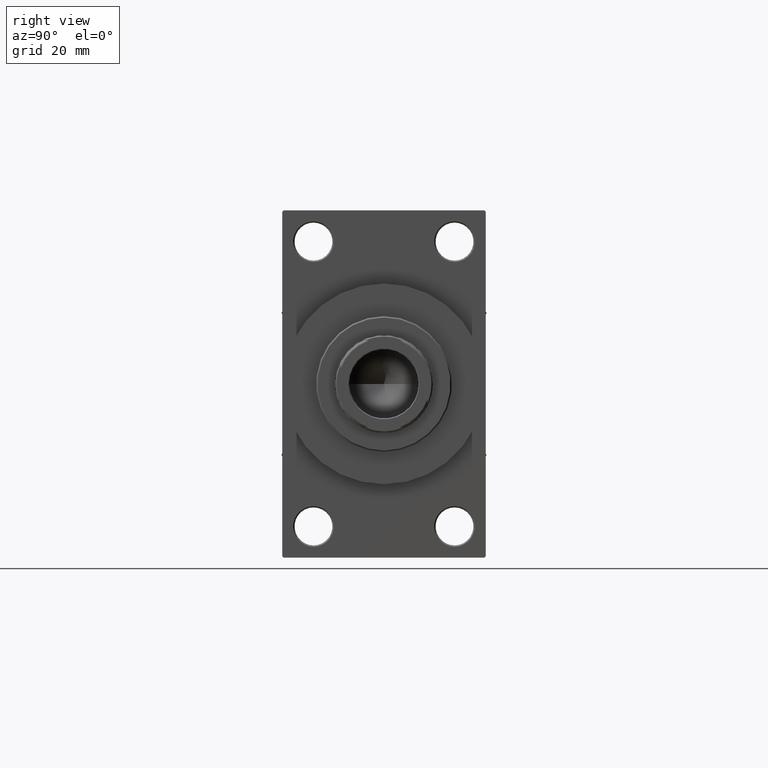
[diagram: clean part render]
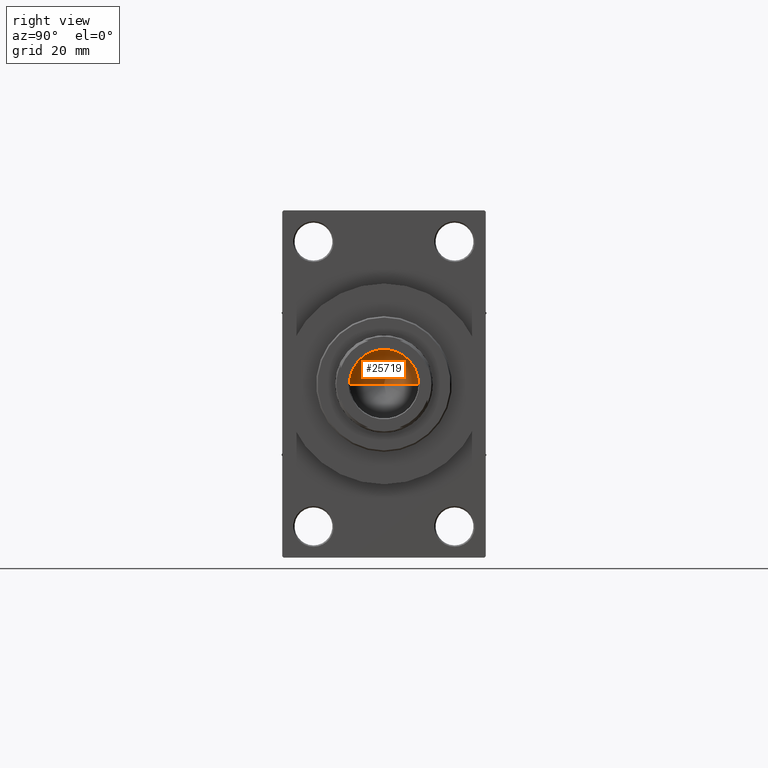
[diagram: same view with one face highlighted and labeled with its STEP entity id]
A machine part, right view. The second image highlights one B-rep face of the part: STEP entity #25719.
In plain terms, the highlighted conical surface has half-angle 59 deg.
Its self-contained STEP definition (entity closure, byte-faithful):
#2316 = EDGE_CURVE ( 'NONE', #34149, #8483, #20122, .T. ) ;
#3617 = AXIS2_PLACEMENT_3D ( 'NONE', #13677, #28246, #13438 ) ;
#7431 = EDGE_CURVE ( 'NONE', #34149, #20442, #42117, .T. ) ;
#8420 = DIRECTION ( 'NONE',  ( 0.8571673007021122226, 0.000000000000000000, 0.5150380749100542666 ) ) ;
#8483 = VERTEX_POINT ( 'NONE', #12857 ) ;
#11724 = AXIS2_PLACEMENT_3D ( 'NONE', #33938, #27247, #16267 ) ;
#12718 = CARTESIAN_POINT ( 'NONE',  ( 12.74999999999998934, 0.000000000000000000, 127.0000000000000000 ) ) ;
#12857 = CARTESIAN_POINT ( 'NONE',  ( 12.74999999999998934, 0.000000000000000000, 127.0000000000000000 ) ) ;
#13202 = FACE_OUTER_BOUND ( 'NONE', #13505, .T. ) ;
#13438 = DIRECTION ( 'NONE',  ( 1.000000000000000000, 0.000000000000000000, 0.000000000000000000 ) ) ;
#13505 = EDGE_LOOP ( 'NONE', ( #34560, #30226, #15418 ) ) ;
#13677 = CARTESIAN_POINT ( 'NONE',  ( 0.000000000000000000, 0.000000000000000000, 127.0000000000000000 ) ) ;
#15418 = ORIENTED_EDGE ( 'NONE', *, *, #45098, .T. ) ;
#16267 = DIRECTION ( 'NONE',  ( 1.000000000000000000, 0.000000000000000000, 0.000000000000000000 ) ) ;
#19909 = CARTESIAN_POINT ( 'NONE',  ( -12.74999999999998934, 1.561424668912873928E-15, 127.0000000000000000 ) ) ;
#20122 = LINE ( 'NONE', #12718, #23780 ) ;
#20442 = VERTEX_POINT ( 'NONE', #40893 ) ;
#22320 = VECTOR ( 'NONE', #41639, 1000.000000000000000 ) ;
#23780 = VECTOR ( 'NONE', #8420, 1000.000000000000000 ) ;
#25719 = ADVANCED_FACE ( 'NONE', ( #13202 ), #29522, .F. ) ;
#27247 = DIRECTION ( 'NONE',  ( -0.000000000000000000, -0.000000000000000000, 1.000000000000000000 ) ) ;
#27738 = CIRCLE ( 'NONE', #11724, 12.74999999999998934 ) ;
#28246 = DIRECTION ( 'NONE',  ( -0.000000000000000000, -0.000000000000000000, 1.000000000000000000 ) ) ;
#29522 = CONICAL_SURFACE ( 'NONE', #3617, 12.74999999999998934, 1.029744258676654312 ) ;
#30226 = ORIENTED_EDGE ( 'NONE', *, *, #7431, .T. ) ;
#33938 = CARTESIAN_POINT ( 'NONE',  ( 0.000000000000000000, 0.000000000000000000, 127.0000000000000000 ) ) ;
#34149 = VERTEX_POINT ( 'NONE', #35902 ) ;
#34560 = ORIENTED_EDGE ( 'NONE', *, *, #2316, .F. ) ;
#35902 = CARTESIAN_POINT ( 'NONE',  ( -1.410643066818227497E-14, 0.000000000000000000, 119.3390271073986213 ) ) ;
#40893 = CARTESIAN_POINT ( 'NONE',  ( -12.74999999999998934, 1.561424668912873928E-15, 127.0000000000000000 ) ) ;
#41639 = DIRECTION ( 'NONE',  ( -0.8571673007021122226, 1.049727191138618572E-16, 0.5150380749100542666 ) ) ;
#42117 = LINE ( 'NONE', #19909, #22320 ) ;
#45098 = EDGE_CURVE ( 'NONE', #20442, #8483, #27738, .T. ) ;